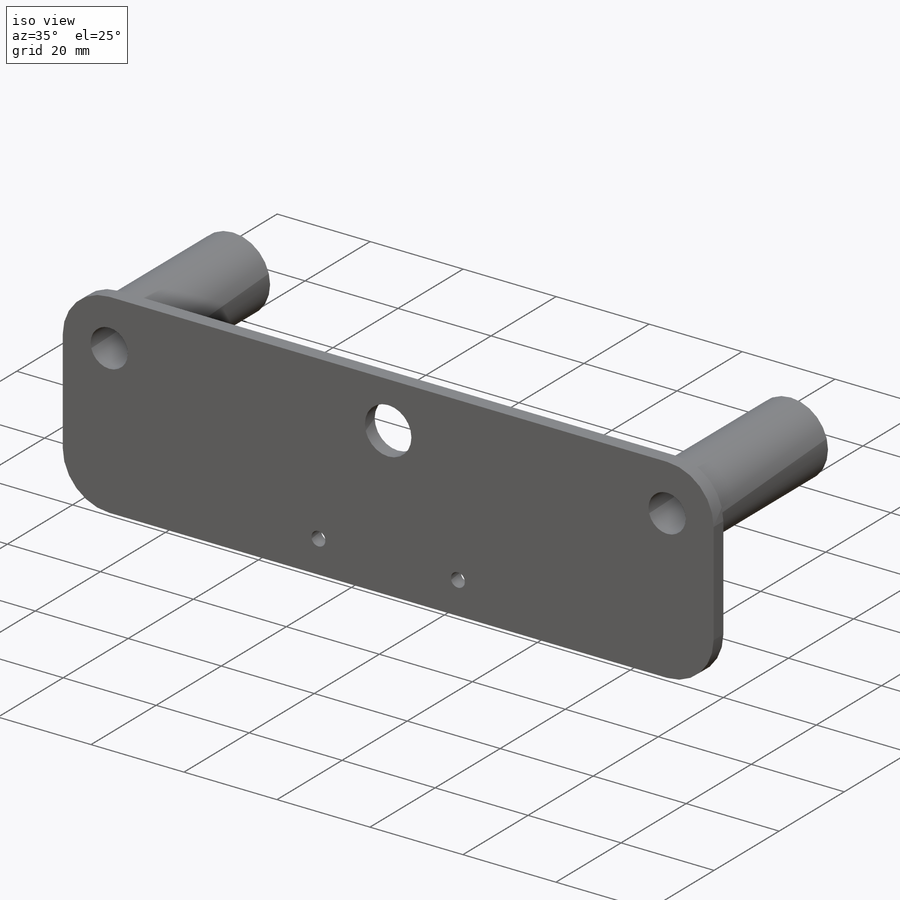
[diagram: iso view]
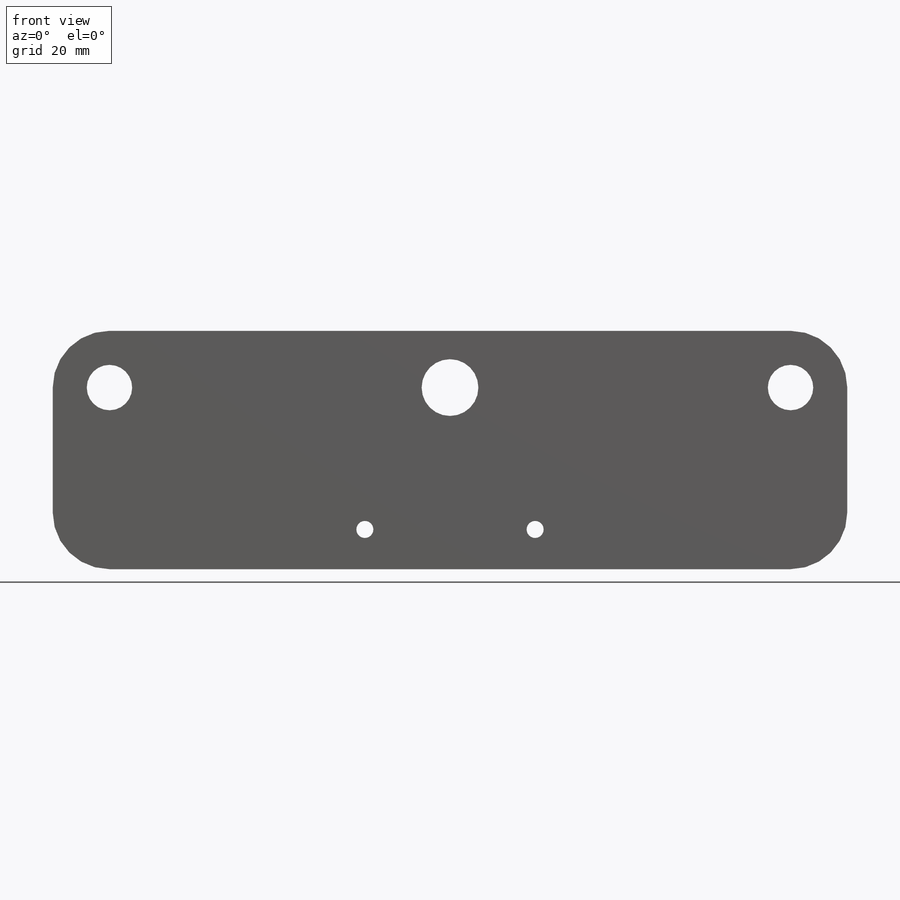
[diagram: front view]
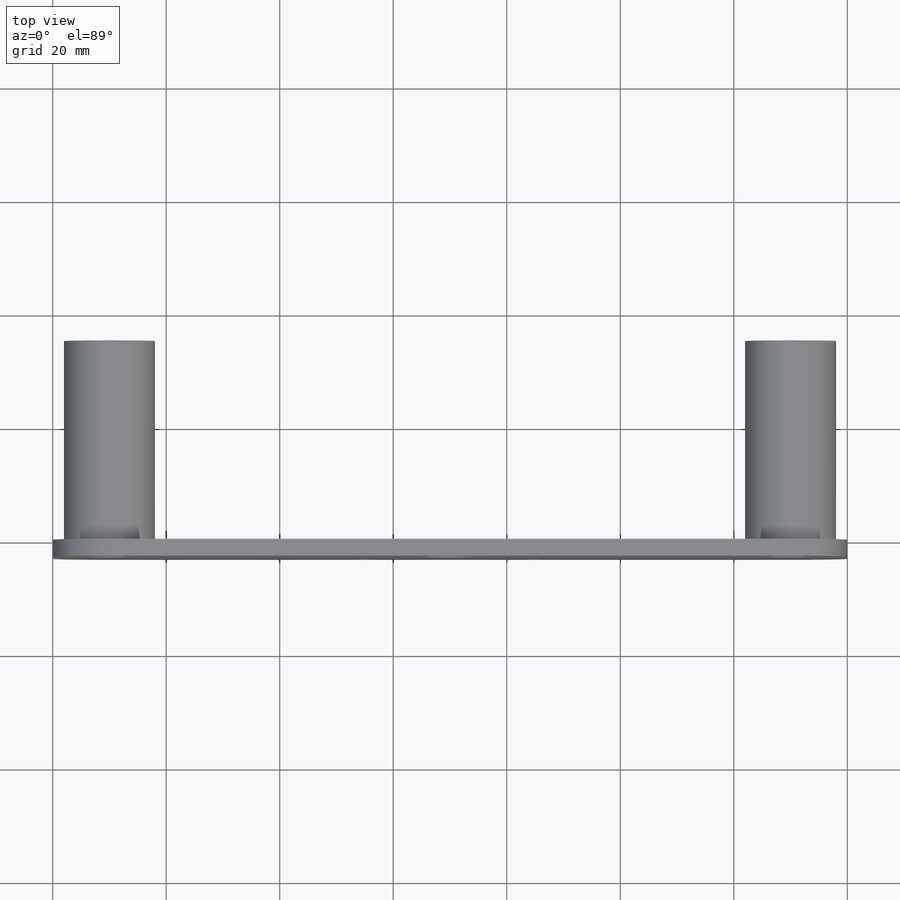
[diagram: top view]
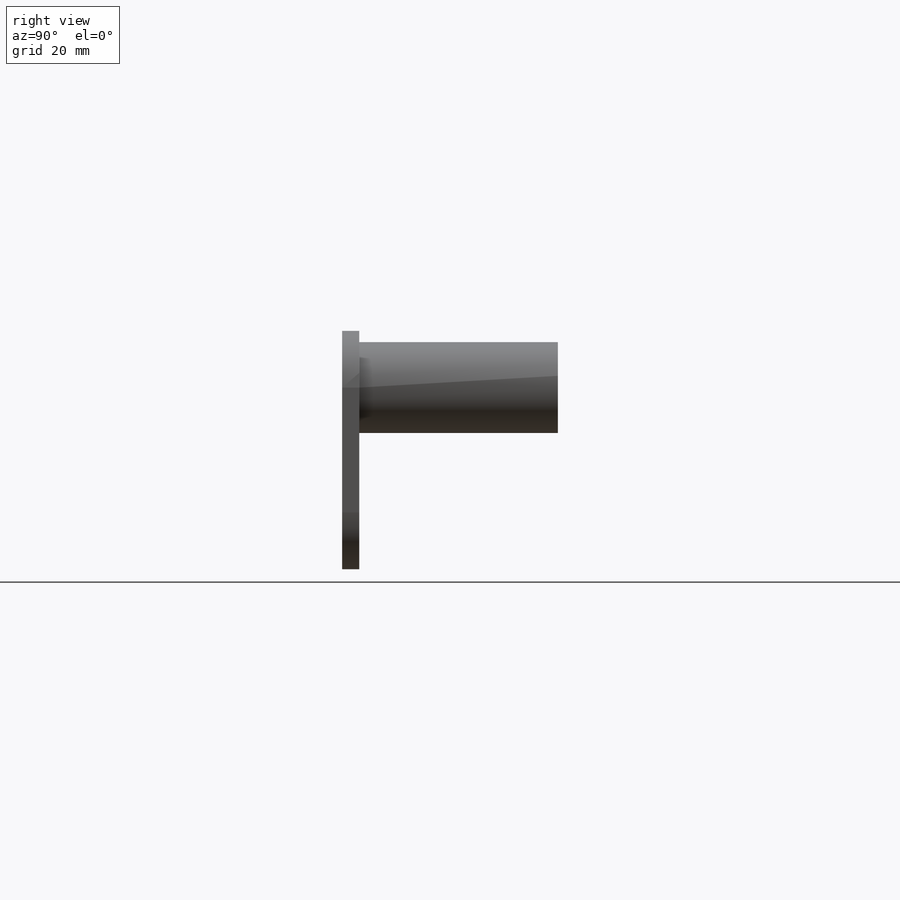
[diagram: right view]
SOLIDWORKS PART (.sldprt)
format: sldprt  version: not decoded by parser v0  size: 289,280 bytes
history: native  units: mm
features: plane x3, sketch x2, extrude x2, fillet x2, material x1 (+8 scaffold rows collapsed)
feature tree (18):
  scaffold x8  (default folders/planes/origin — collapsed)
  material  "Matériau <non spécifié>"
  plane  "Plan de face"
  plane  "Plan de dessus"
  plane  "Plan de droite"
  sketch  "Esquisse1"  dims[c1.D1=10.0mm c1.D2=8.0mm c1.D3=3.0mm c1.D9=3.0mm c1.D10=3.0mm c1.D4=35.0mm c1.D5=60.0mm c1.D6=10.0mm c1.D7=10.0mm c1.D8=140.0mm c2.D9=15.0mm c2.D10=7.0mm]
  extrude  "Boss.-Extru.1"  Depth=3mm
  fillet  "Congé1"  Radius=10mm
  fillet  "Congé2"  Radius=10mm
  sketch  "Esquisse2"  dims[c1.D1=8.0mm c1.D2=8.0mm c1.D3=8.0mm c2.D1=4.0mm]
  extrude  "Boss.-Extru.2"  Depth=38mm
decode coverage: 6 of 6 modeling features carry decoded parameters
note: suppression state not decoded; provenance and decode notes live in map.json
